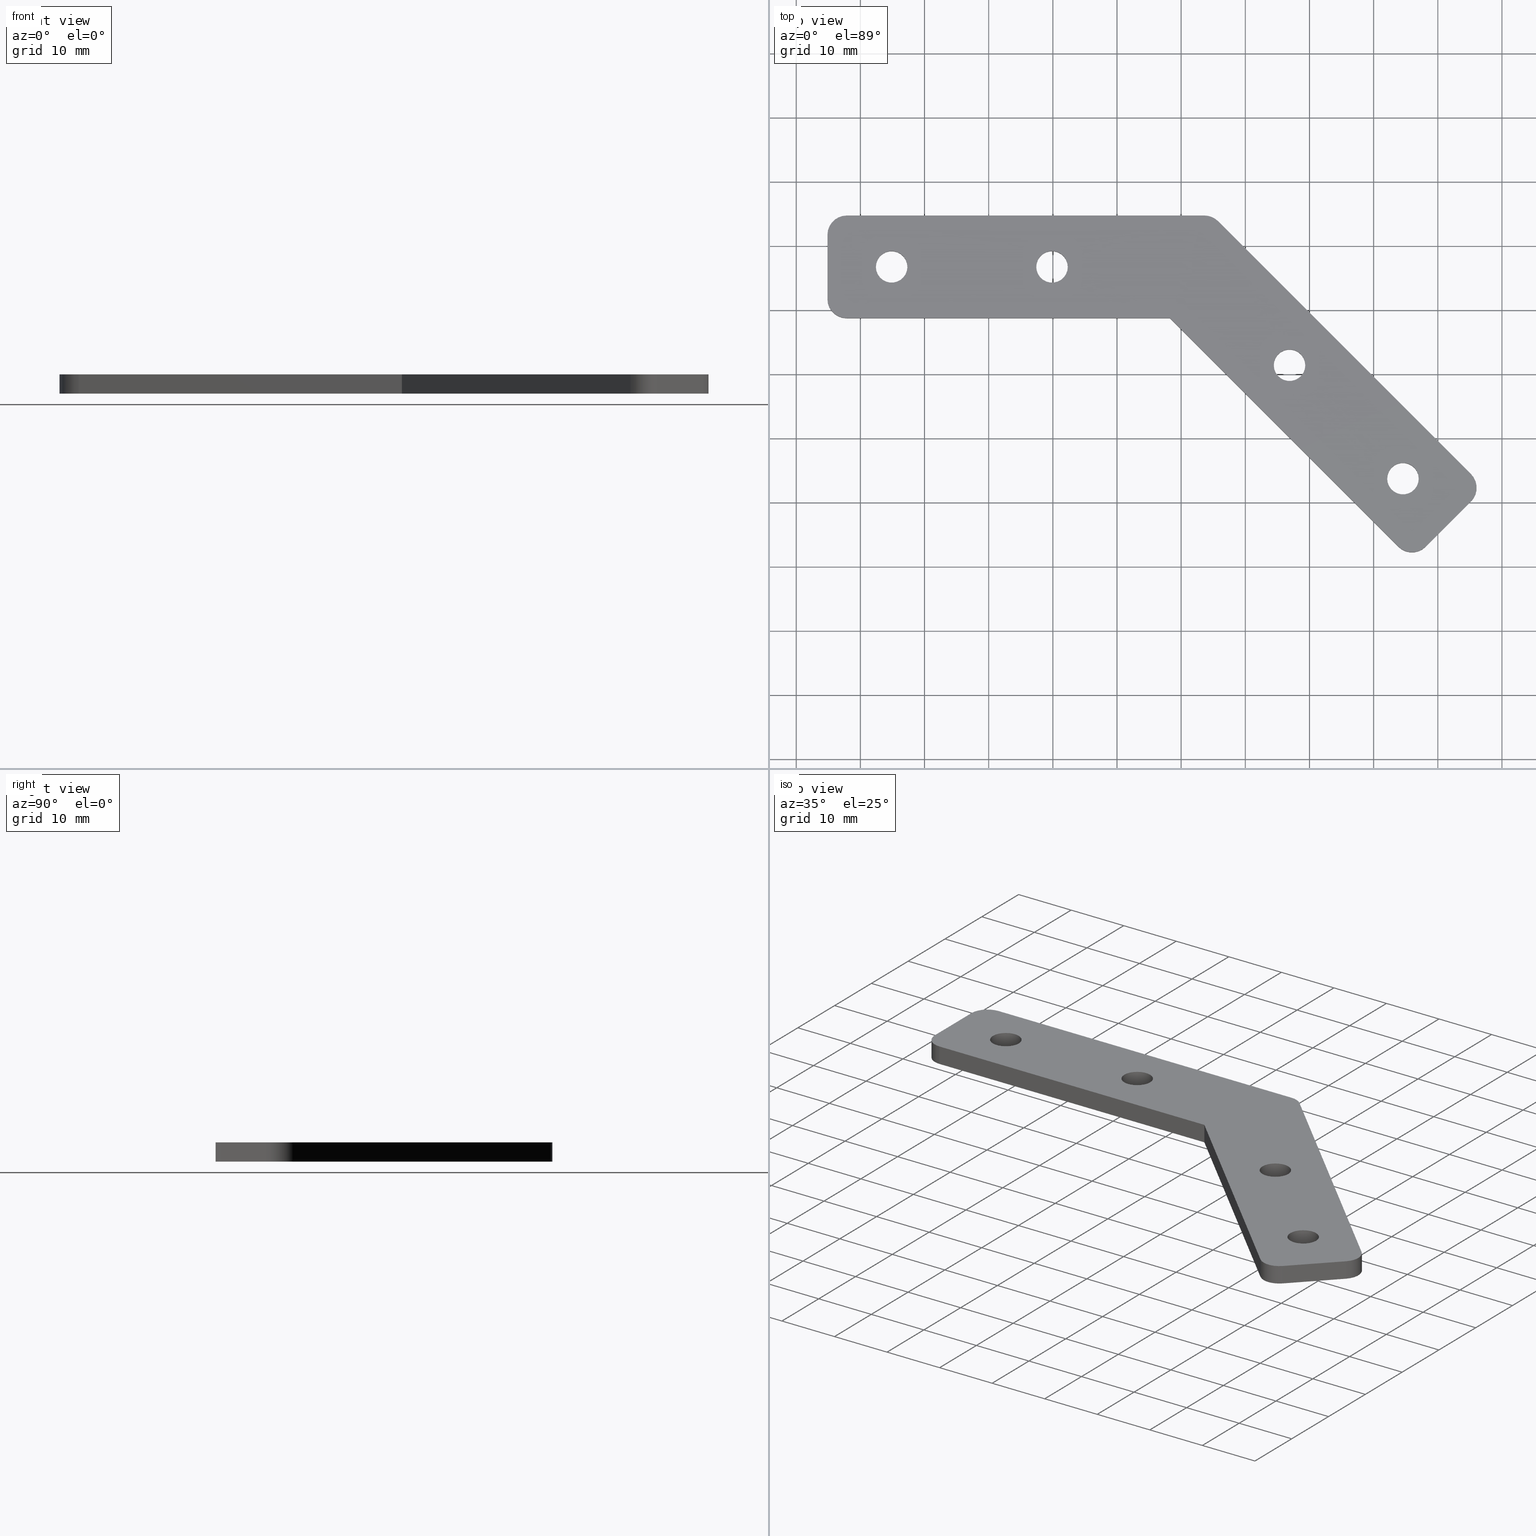
[diagram: canonical four-view strip — front | top / right | iso, engineering-drawing reading convention]
A machine part, canonical four-view strip (front | top / right | iso — engineering-drawing reading convention). The complete STEP part file that produces these views, byte-faithful:
ISO-10303-21;
HEADER;
/* Generated by software containing ST-Developer
 * from STEP Tools, Inc. (www.steptools.com) 
 */

FILE_DESCRIPTION(
/* description */ ('GIUNZIONE. ANG. A 45\X2\FFFD\X0\ PER PROF. SERIE 3
0'),
/* implementation_level */ '2;1');

FILE_NAME(
/* name */ 
'Q:\\Catalogo\\2_Accessori Dierre\\Per Download Web e catalogo cartace
o\\CATALOGO ELEMENTI ASSEMBLAGGIO\\PAGINA 24\\CGIPR0000088.stp',
/* time_stamp */ '2018-06-19T09:16:56+02:00',
/* author */ ('fzagni'),
/* organization */ (''),
/* preprocessor_version */ 'ST-DEVELOPER v16.1',
/* originating_system */ 'Autodesk Inventor 2016',
/* authorisation */ '');

FILE_SCHEMA (('AUTOMOTIVE_DESIGN { 1 0 10303 214 3 1 1 }'));
ENDSEC;

DATA;
#10=MECHANICAL_DESIGN_GEOMETRIC_PRESENTATION_REPRESENTATION('',(#13),#548);
#11=SHAPE_REPRESENTATION_RELATIONSHIP('SRR','None',#557,#12);
#12=ADVANCED_BREP_SHAPE_REPRESENTATION('',(#14),#547);
#13=STYLED_ITEM('',(#566),#14);
#14=MANIFOLD_SOLID_BREP('Solido1',#324);
#15=PLANE('',#341);
#16=PLANE('',#345);
#17=PLANE('',#349);
#18=PLANE('',#350);
#19=PLANE('',#354);
#20=PLANE('',#358);
#21=PLANE('',#359);
#22=PLANE('',#360);
#23=LINE('',#482,#46);
#24=LINE('',#485,#47);
#25=LINE('',#488,#48);
#26=LINE('',#490,#49);
#27=LINE('',#491,#50);
#28=LINE('',#497,#51);
#29=LINE('',#500,#52);
#30=LINE('',#502,#53);
#31=LINE('',#503,#54);
#32=LINE('',#509,#55);
#33=LINE('',#512,#56);
#34=LINE('',#514,#57);
#35=LINE('',#515,#58);
#36=LINE('',#518,#59);
#37=LINE('',#520,#60);
#38=LINE('',#521,#61);
#39=LINE('',#527,#62);
#40=LINE('',#530,#63);
#41=LINE('',#532,#64);
#42=LINE('',#533,#65);
#43=LINE('',#539,#66);
#44=LINE('',#541,#67);
#45=LINE('',#542,#68);
#46=VECTOR('',#391,3.);
#47=VECTOR('',#394,3.);
#48=VECTOR('',#397,55.7573593128806);
#49=VECTOR('',#398,55.7573593128806);
#50=VECTOR('',#399,3.);
#51=VECTOR('',#406,3.);
#52=VECTOR('',#409,10.0000000000002);
#53=VECTOR('',#410,10.0000000000002);
#54=VECTOR('',#411,3.);
#55=VECTOR('',#418,3.);
#56=VECTOR('',#421,50.3725830020307);
#57=VECTOR('',#422,50.3725830020307);
#58=VECTOR('',#423,3.);
#59=VECTOR('',#426,50.3725830020304);
#60=VECTOR('',#427,50.3725830020304);
#61=VECTOR('',#428,3.);
#62=VECTOR('',#435,3.);
#63=VECTOR('',#438,10.);
#64=VECTOR('',#439,10.);
#65=VECTOR('',#440,3.);
#66=VECTOR('',#447,3.);
#67=VECTOR('',#450,55.7573593128808);
#68=VECTOR('',#451,55.7573593128808);
#69=FACE_BOUND('',#99,.T.);
#70=FACE_BOUND('',#101,.T.);
#71=FACE_BOUND('',#103,.T.);
#72=FACE_BOUND('',#105,.T.);
#73=FACE_BOUND('',#118,.T.);
#74=FACE_BOUND('',#119,.T.);
#75=FACE_BOUND('',#120,.T.);
#76=FACE_BOUND('',#121,.T.);
#77=FACE_BOUND('',#123,.T.);
#78=FACE_BOUND('',#124,.T.);
#79=FACE_BOUND('',#125,.T.);
#80=FACE_BOUND('',#126,.T.);
#81=FACE_OUTER_BOUND('',#98,.T.);
#82=FACE_OUTER_BOUND('',#100,.T.);
#83=FACE_OUTER_BOUND('',#102,.T.);
#84=FACE_OUTER_BOUND('',#104,.T.);
#85=FACE_OUTER_BOUND('',#106,.T.);
#86=FACE_OUTER_BOUND('',#107,.T.);
#87=FACE_OUTER_BOUND('',#108,.T.);
#88=FACE_OUTER_BOUND('',#109,.T.);
#89=FACE_OUTER_BOUND('',#110,.T.);
#90=FACE_OUTER_BOUND('',#111,.T.);
#91=FACE_OUTER_BOUND('',#112,.T.);
#92=FACE_OUTER_BOUND('',#113,.T.);
#93=FACE_OUTER_BOUND('',#114,.T.);
#94=FACE_OUTER_BOUND('',#115,.T.);
#95=FACE_OUTER_BOUND('',#116,.T.);
#96=FACE_OUTER_BOUND('',#117,.T.);
#97=FACE_OUTER_BOUND('',#122,.T.);
#98=EDGE_LOOP('',(#216));
#99=EDGE_LOOP('',(#217));
#100=EDGE_LOOP('',(#218));
#101=EDGE_LOOP('',(#219));
#102=EDGE_LOOP('',(#220));
#103=EDGE_LOOP('',(#221));
#104=EDGE_LOOP('',(#222));
#105=EDGE_LOOP('',(#223));
#106=EDGE_LOOP('',(#224,#225,#226,#227));
#107=EDGE_LOOP('',(#228,#229,#230,#231));
#108=EDGE_LOOP('',(#232,#233,#234,#235));
#109=EDGE_LOOP('',(#236,#237,#238,#239));
#110=EDGE_LOOP('',(#240,#241,#242,#243));
#111=EDGE_LOOP('',(#244,#245,#246,#247));
#112=EDGE_LOOP('',(#248,#249,#250,#251));
#113=EDGE_LOOP('',(#252,#253,#254,#255));
#114=EDGE_LOOP('',(#256,#257,#258,#259));
#115=EDGE_LOOP('',(#260,#261,#262,#263));
#116=EDGE_LOOP('',(#264,#265,#266,#267));
#117=EDGE_LOOP('',(#268,#269,#270,#271,#272,#273,#274,#275,#276,#277,#278));
#118=EDGE_LOOP('',(#279));
#119=EDGE_LOOP('',(#280));
#120=EDGE_LOOP('',(#281));
#121=EDGE_LOOP('',(#282));
#122=EDGE_LOOP('',(#283,#284,#285,#286,#287,#288,#289,#290,#291,#292,#293));
#123=EDGE_LOOP('',(#294));
#124=EDGE_LOOP('',(#295));
#125=EDGE_LOOP('',(#296));
#126=EDGE_LOOP('',(#297));
#127=CIRCLE('',#327,2.4585);
#128=CIRCLE('',#328,2.4585);
#129=CIRCLE('',#330,2.4585);
#130=CIRCLE('',#331,2.4585);
#131=CIRCLE('',#333,2.4585);
#132=CIRCLE('',#334,2.4585);
#133=CIRCLE('',#336,2.4585);
#134=CIRCLE('',#337,2.4585);
#135=CIRCLE('',#339,3.);
#136=CIRCLE('',#340,3.);
#137=CIRCLE('',#343,3.);
#138=CIRCLE('',#344,3.);
#139=CIRCLE('',#347,3.);
#140=CIRCLE('',#348,3.);
#141=CIRCLE('',#352,3.);
#142=CIRCLE('',#353,3.);
#143=CIRCLE('',#356,3.);
#144=CIRCLE('',#357,3.);
#145=VERTEX_POINT('',#458);
#146=VERTEX_POINT('',#460);
#147=VERTEX_POINT('',#463);
#148=VERTEX_POINT('',#465);
#149=VERTEX_POINT('',#468);
#150=VERTEX_POINT('',#470);
#151=VERTEX_POINT('',#473);
#152=VERTEX_POINT('',#475);
#153=VERTEX_POINT('',#478);
#154=VERTEX_POINT('',#479);
#155=VERTEX_POINT('',#481);
#156=VERTEX_POINT('',#483);
#157=VERTEX_POINT('',#487);
#158=VERTEX_POINT('',#489);
#159=VERTEX_POINT('',#493);
#160=VERTEX_POINT('',#495);
#161=VERTEX_POINT('',#499);
#162=VERTEX_POINT('',#501);
#163=VERTEX_POINT('',#505);
#164=VERTEX_POINT('',#507);
#165=VERTEX_POINT('',#511);
#166=VERTEX_POINT('',#513);
#167=VERTEX_POINT('',#517);
#168=VERTEX_POINT('',#519);
#169=VERTEX_POINT('',#523);
#170=VERTEX_POINT('',#525);
#171=VERTEX_POINT('',#529);
#172=VERTEX_POINT('',#531);
#173=VERTEX_POINT('',#535);
#174=VERTEX_POINT('',#537);
#175=EDGE_CURVE('',#145,#145,#127,.T.);
#176=EDGE_CURVE('',#146,#146,#128,.T.);
#177=EDGE_CURVE('',#147,#147,#129,.T.);
#178=EDGE_CURVE('',#148,#148,#130,.T.);
#179=EDGE_CURVE('',#149,#149,#131,.T.);
#180=EDGE_CURVE('',#150,#150,#132,.T.);
#181=EDGE_CURVE('',#151,#151,#133,.T.);
#182=EDGE_CURVE('',#152,#152,#134,.T.);
#183=EDGE_CURVE('',#153,#154,#135,.T.);
#184=EDGE_CURVE('',#153,#155,#23,.T.);
#185=EDGE_CURVE('',#156,#155,#136,.T.);
#186=EDGE_CURVE('',#154,#156,#24,.T.);
#187=EDGE_CURVE('',#154,#157,#25,.T.);
#188=EDGE_CURVE('',#158,#156,#26,.T.);
#189=EDGE_CURVE('',#157,#158,#27,.T.);
#190=EDGE_CURVE('',#157,#159,#137,.T.);
#191=EDGE_CURVE('',#160,#158,#138,.T.);
#192=EDGE_CURVE('',#159,#160,#28,.T.);
#193=EDGE_CURVE('',#159,#161,#29,.T.);
#194=EDGE_CURVE('',#162,#160,#30,.T.);
#195=EDGE_CURVE('',#161,#162,#31,.T.);
#196=EDGE_CURVE('',#161,#163,#139,.T.);
#197=EDGE_CURVE('',#164,#162,#140,.T.);
#198=EDGE_CURVE('',#163,#164,#32,.T.);
#199=EDGE_CURVE('',#163,#165,#33,.T.);
#200=EDGE_CURVE('',#166,#164,#34,.T.);
#201=EDGE_CURVE('',#165,#166,#35,.T.);
#202=EDGE_CURVE('',#165,#167,#36,.T.);
#203=EDGE_CURVE('',#168,#166,#37,.T.);
#204=EDGE_CURVE('',#167,#168,#38,.T.);
#205=EDGE_CURVE('',#167,#169,#141,.T.);
#206=EDGE_CURVE('',#170,#168,#142,.T.);
#207=EDGE_CURVE('',#169,#170,#39,.T.);
#208=EDGE_CURVE('',#169,#171,#40,.T.);
#209=EDGE_CURVE('',#172,#170,#41,.T.);
#210=EDGE_CURVE('',#171,#172,#42,.T.);
#211=EDGE_CURVE('',#171,#173,#143,.T.);
#212=EDGE_CURVE('',#174,#172,#144,.T.);
#213=EDGE_CURVE('',#173,#174,#43,.T.);
#214=EDGE_CURVE('',#173,#153,#44,.T.);
#215=EDGE_CURVE('',#155,#174,#45,.T.);
#216=ORIENTED_EDGE('',*,*,#175,.F.);
#217=ORIENTED_EDGE('',*,*,#176,.F.);
#218=ORIENTED_EDGE('',*,*,#177,.F.);
#219=ORIENTED_EDGE('',*,*,#178,.F.);
#220=ORIENTED_EDGE('',*,*,#179,.F.);
#221=ORIENTED_EDGE('',*,*,#180,.F.);
#222=ORIENTED_EDGE('',*,*,#181,.F.);
#223=ORIENTED_EDGE('',*,*,#182,.F.);
#224=ORIENTED_EDGE('',*,*,#183,.F.);
#225=ORIENTED_EDGE('',*,*,#184,.T.);
#226=ORIENTED_EDGE('',*,*,#185,.F.);
#227=ORIENTED_EDGE('',*,*,#186,.F.);
#228=ORIENTED_EDGE('',*,*,#187,.F.);
#229=ORIENTED_EDGE('',*,*,#186,.T.);
#230=ORIENTED_EDGE('',*,*,#188,.F.);
#231=ORIENTED_EDGE('',*,*,#189,.F.);
#232=ORIENTED_EDGE('',*,*,#190,.F.);
#233=ORIENTED_EDGE('',*,*,#189,.T.);
#234=ORIENTED_EDGE('',*,*,#191,.F.);
#235=ORIENTED_EDGE('',*,*,#192,.F.);
#236=ORIENTED_EDGE('',*,*,#193,.F.);
#237=ORIENTED_EDGE('',*,*,#192,.T.);
#238=ORIENTED_EDGE('',*,*,#194,.F.);
#239=ORIENTED_EDGE('',*,*,#195,.F.);
#240=ORIENTED_EDGE('',*,*,#196,.F.);
#241=ORIENTED_EDGE('',*,*,#195,.T.);
#242=ORIENTED_EDGE('',*,*,#197,.F.);
#243=ORIENTED_EDGE('',*,*,#198,.F.);
#244=ORIENTED_EDGE('',*,*,#199,.F.);
#245=ORIENTED_EDGE('',*,*,#198,.T.);
#246=ORIENTED_EDGE('',*,*,#200,.F.);
#247=ORIENTED_EDGE('',*,*,#201,.F.);
#248=ORIENTED_EDGE('',*,*,#202,.F.);
#249=ORIENTED_EDGE('',*,*,#201,.T.);
#250=ORIENTED_EDGE('',*,*,#203,.F.);
#251=ORIENTED_EDGE('',*,*,#204,.F.);
#252=ORIENTED_EDGE('',*,*,#205,.F.);
#253=ORIENTED_EDGE('',*,*,#204,.T.);
#254=ORIENTED_EDGE('',*,*,#206,.F.);
#255=ORIENTED_EDGE('',*,*,#207,.F.);
#256=ORIENTED_EDGE('',*,*,#208,.F.);
#257=ORIENTED_EDGE('',*,*,#207,.T.);
#258=ORIENTED_EDGE('',*,*,#209,.F.);
#259=ORIENTED_EDGE('',*,*,#210,.F.);
#260=ORIENTED_EDGE('',*,*,#211,.F.);
#261=ORIENTED_EDGE('',*,*,#210,.T.);
#262=ORIENTED_EDGE('',*,*,#212,.F.);
#263=ORIENTED_EDGE('',*,*,#213,.F.);
#264=ORIENTED_EDGE('',*,*,#214,.F.);
#265=ORIENTED_EDGE('',*,*,#213,.T.);
#266=ORIENTED_EDGE('',*,*,#215,.F.);
#267=ORIENTED_EDGE('',*,*,#184,.F.);
#268=ORIENTED_EDGE('',*,*,#214,.T.);
#269=ORIENTED_EDGE('',*,*,#183,.T.);
#270=ORIENTED_EDGE('',*,*,#187,.T.);
#271=ORIENTED_EDGE('',*,*,#190,.T.);
#272=ORIENTED_EDGE('',*,*,#193,.T.);
#273=ORIENTED_EDGE('',*,*,#196,.T.);
#274=ORIENTED_EDGE('',*,*,#199,.T.);
#275=ORIENTED_EDGE('',*,*,#202,.T.);
#276=ORIENTED_EDGE('',*,*,#205,.T.);
#277=ORIENTED_EDGE('',*,*,#208,.T.);
#278=ORIENTED_EDGE('',*,*,#211,.T.);
#279=ORIENTED_EDGE('',*,*,#175,.T.);
#280=ORIENTED_EDGE('',*,*,#177,.T.);
#281=ORIENTED_EDGE('',*,*,#179,.T.);
#282=ORIENTED_EDGE('',*,*,#181,.T.);
#283=ORIENTED_EDGE('',*,*,#215,.T.);
#284=ORIENTED_EDGE('',*,*,#212,.T.);
#285=ORIENTED_EDGE('',*,*,#209,.T.);
#286=ORIENTED_EDGE('',*,*,#206,.T.);
#287=ORIENTED_EDGE('',*,*,#203,.T.);
#288=ORIENTED_EDGE('',*,*,#200,.T.);
#289=ORIENTED_EDGE('',*,*,#197,.T.);
#290=ORIENTED_EDGE('',*,*,#194,.T.);
#291=ORIENTED_EDGE('',*,*,#191,.T.);
#292=ORIENTED_EDGE('',*,*,#188,.T.);
#293=ORIENTED_EDGE('',*,*,#185,.T.);
#294=ORIENTED_EDGE('',*,*,#176,.T.);
#295=ORIENTED_EDGE('',*,*,#178,.T.);
#296=ORIENTED_EDGE('',*,*,#180,.T.);
#297=ORIENTED_EDGE('',*,*,#182,.T.);
#298=CYLINDRICAL_SURFACE('',#326,2.4585);
#299=CYLINDRICAL_SURFACE('',#329,2.4585);
#300=CYLINDRICAL_SURFACE('',#332,2.4585);
#301=CYLINDRICAL_SURFACE('',#335,2.4585);
#302=CYLINDRICAL_SURFACE('',#338,3.);
#303=CYLINDRICAL_SURFACE('',#342,3.);
#304=CYLINDRICAL_SURFACE('',#346,3.);
#305=CYLINDRICAL_SURFACE('',#351,3.);
#306=CYLINDRICAL_SURFACE('',#355,3.);
#307=ADVANCED_FACE('',(#81,#69),#298,.F.);
#308=ADVANCED_FACE('',(#82,#70),#299,.F.);
#309=ADVANCED_FACE('',(#83,#71),#300,.F.);
#310=ADVANCED_FACE('',(#84,#72),#301,.F.);
#311=ADVANCED_FACE('',(#85),#302,.T.);
#312=ADVANCED_FACE('',(#86),#15,.T.);
#313=ADVANCED_FACE('',(#87),#303,.T.);
#314=ADVANCED_FACE('',(#88),#16,.T.);
#315=ADVANCED_FACE('',(#89),#304,.T.);
#316=ADVANCED_FACE('',(#90),#17,.T.);
#317=ADVANCED_FACE('',(#91),#18,.T.);
#318=ADVANCED_FACE('',(#92),#305,.T.);
#319=ADVANCED_FACE('',(#93),#19,.T.);
#320=ADVANCED_FACE('',(#94),#306,.T.);
#321=ADVANCED_FACE('',(#95),#20,.T.);
#322=ADVANCED_FACE('',(#96,#73,#74,#75,#76),#21,.F.);
#323=ADVANCED_FACE('',(#97,#77,#78,#79,#80),#22,.T.);
#324=CLOSED_SHELL('',(#307,#308,#309,#310,#311,#312,#313,#314,#315,#316,
#317,#318,#319,#320,#321,#322,#323));
#325=AXIS2_PLACEMENT_3D('placement',#456,#361,#362);
#326=AXIS2_PLACEMENT_3D('',#457,#363,#364);
#327=AXIS2_PLACEMENT_3D('',#459,#365,#366);
#328=AXIS2_PLACEMENT_3D('',#461,#367,#368);
#329=AXIS2_PLACEMENT_3D('',#462,#369,#370);
#330=AXIS2_PLACEMENT_3D('',#464,#371,#372);
#331=AXIS2_PLACEMENT_3D('',#466,#373,#374);
#332=AXIS2_PLACEMENT_3D('',#467,#375,#376);
#333=AXIS2_PLACEMENT_3D('',#469,#377,#378);
#334=AXIS2_PLACEMENT_3D('',#471,#379,#380);
#335=AXIS2_PLACEMENT_3D('',#472,#381,#382);
#336=AXIS2_PLACEMENT_3D('',#474,#383,#384);
#337=AXIS2_PLACEMENT_3D('',#476,#385,#386);
#338=AXIS2_PLACEMENT_3D('',#477,#387,#388);
#339=AXIS2_PLACEMENT_3D('',#480,#389,#390);
#340=AXIS2_PLACEMENT_3D('',#484,#392,#393);
#341=AXIS2_PLACEMENT_3D('',#486,#395,#396);
#342=AXIS2_PLACEMENT_3D('',#492,#400,#401);
#343=AXIS2_PLACEMENT_3D('',#494,#402,#403);
#344=AXIS2_PLACEMENT_3D('',#496,#404,#405);
#345=AXIS2_PLACEMENT_3D('',#498,#407,#408);
#346=AXIS2_PLACEMENT_3D('',#504,#412,#413);
#347=AXIS2_PLACEMENT_3D('',#506,#414,#415);
#348=AXIS2_PLACEMENT_3D('',#508,#416,#417);
#349=AXIS2_PLACEMENT_3D('',#510,#419,#420);
#350=AXIS2_PLACEMENT_3D('',#516,#424,#425);
#351=AXIS2_PLACEMENT_3D('',#522,#429,#430);
#352=AXIS2_PLACEMENT_3D('',#524,#431,#432);
#353=AXIS2_PLACEMENT_3D('',#526,#433,#434);
#354=AXIS2_PLACEMENT_3D('',#528,#436,#437);
#355=AXIS2_PLACEMENT_3D('',#534,#441,#442);
#356=AXIS2_PLACEMENT_3D('',#536,#443,#444);
#357=AXIS2_PLACEMENT_3D('',#538,#445,#446);
#358=AXIS2_PLACEMENT_3D('',#540,#448,#449);
#359=AXIS2_PLACEMENT_3D('',#543,#452,#453);
#360=AXIS2_PLACEMENT_3D('',#544,#454,#455);
#361=DIRECTION('axis',(0.,0.,1.));
#362=DIRECTION('refdir',(1.,0.,0.));
#363=DIRECTION('center_axis',(0.,0.,1.));
#364=DIRECTION('ref_axis',(1.,0.,0.));
#365=DIRECTION('center_axis',(0.,0.,1.));
#366=DIRECTION('ref_axis',(1.,0.,0.));
#367=DIRECTION('center_axis',(0.,0.,-1.));
#368=DIRECTION('ref_axis',(1.,0.,0.));
#369=DIRECTION('center_axis',(0.,0.,1.));
#370=DIRECTION('ref_axis',(1.,0.,0.));
#371=DIRECTION('center_axis',(0.,0.,1.));
#372=DIRECTION('ref_axis',(1.,0.,0.));
#373=DIRECTION('center_axis',(0.,0.,-1.));
#374=DIRECTION('ref_axis',(1.,0.,0.));
#375=DIRECTION('center_axis',(0.,0.,1.));
#376=DIRECTION('ref_axis',(1.,0.,0.));
#377=DIRECTION('center_axis',(0.,0.,1.));
#378=DIRECTION('ref_axis',(1.,0.,0.));
#379=DIRECTION('center_axis',(0.,0.,-1.));
#380=DIRECTION('ref_axis',(1.,0.,0.));
#381=DIRECTION('center_axis',(0.,0.,1.));
#382=DIRECTION('ref_axis',(1.,0.,0.));
#383=DIRECTION('center_axis',(0.,0.,1.));
#384=DIRECTION('ref_axis',(1.,0.,0.));
#385=DIRECTION('center_axis',(0.,0.,-1.));
#386=DIRECTION('ref_axis',(1.,0.,0.));
#387=DIRECTION('center_axis',(0.,0.,1.));
#388=DIRECTION('ref_axis',(-0.707106781186558,-0.707106781186537,0.));
#389=DIRECTION('center_axis',(0.,0.,-1.));
#390=DIRECTION('ref_axis',(-0.707106781186558,-0.707106781186537,0.));
#391=DIRECTION('',(0.,0.,1.));
#392=DIRECTION('center_axis',(0.,0.,1.));
#393=DIRECTION('ref_axis',(-0.707106781186558,-0.707106781186537,0.));
#394=DIRECTION('',(0.,0.,1.));
#395=DIRECTION('center_axis',(0.707106781186546,0.707106781186549,0.));
#396=DIRECTION('ref_axis',(-0.707106781186549,0.707106781186546,0.));
#397=DIRECTION('',(0.707106781186549,-0.707106781186546,0.));
#398=DIRECTION('',(-0.707106781186549,0.707106781186546,0.));
#399=DIRECTION('',(0.,0.,1.));
#400=DIRECTION('center_axis',(0.,0.,1.));
#401=DIRECTION('ref_axis',(-0.707106781186537,0.707106781186558,0.));
#402=DIRECTION('center_axis',(0.,0.,-1.));
#403=DIRECTION('ref_axis',(-0.707106781186537,0.707106781186558,0.));
#404=DIRECTION('center_axis',(0.,0.,1.));
#405=DIRECTION('ref_axis',(-0.707106781186537,0.707106781186558,0.));
#406=DIRECTION('',(0.,0.,1.));
#407=DIRECTION('center_axis',(0.707106781186539,-0.707106781186556,0.));
#408=DIRECTION('ref_axis',(0.707106781186556,0.707106781186539,0.));
#409=DIRECTION('',(-0.707106781186556,-0.707106781186539,0.));
#410=DIRECTION('',(0.707106781186556,0.707106781186539,0.));
#411=DIRECTION('',(0.,0.,1.));
#412=DIRECTION('center_axis',(0.,0.,1.));
#413=DIRECTION('ref_axis',(0.707106781186557,0.707106781186538,0.));
#414=DIRECTION('center_axis',(0.,0.,-1.));
#415=DIRECTION('ref_axis',(0.707106781186557,0.707106781186538,0.));
#416=DIRECTION('center_axis',(0.,0.,1.));
#417=DIRECTION('ref_axis',(0.707106781186557,0.707106781186538,0.));
#418=DIRECTION('',(0.,0.,1.));
#419=DIRECTION('center_axis',(-0.707106781186546,-0.707106781186549,0.));
#420=DIRECTION('ref_axis',(0.707106781186549,-0.707106781186546,0.));
#421=DIRECTION('',(-0.707106781186549,0.707106781186546,0.));
#422=DIRECTION('',(0.707106781186549,-0.707106781186546,0.));
#423=DIRECTION('',(0.,0.,1.));
#424=DIRECTION('center_axis',(0.,-1.,0.));
#425=DIRECTION('ref_axis',(1.,0.,0.));
#426=DIRECTION('',(-1.,0.,0.));
#427=DIRECTION('',(1.,0.,0.));
#428=DIRECTION('',(0.,0.,1.));
#429=DIRECTION('center_axis',(0.,0.,1.));
#430=DIRECTION('ref_axis',(1.,0.,0.));
#431=DIRECTION('center_axis',(0.,0.,-1.));
#432=DIRECTION('ref_axis',(1.,0.,0.));
#433=DIRECTION('center_axis',(0.,0.,1.));
#434=DIRECTION('ref_axis',(1.,0.,0.));
#435=DIRECTION('',(0.,0.,1.));
#436=DIRECTION('center_axis',(-1.,0.,0.));
#437=DIRECTION('ref_axis',(0.,-1.,0.));
#438=DIRECTION('',(0.,1.,0.));
#439=DIRECTION('',(0.,-1.,0.));
#440=DIRECTION('',(0.,0.,1.));
#441=DIRECTION('center_axis',(0.,0.,1.));
#442=DIRECTION('ref_axis',(0.,-1.,0.));
#443=DIRECTION('center_axis',(0.,0.,-1.));
#444=DIRECTION('ref_axis',(0.,-1.,0.));
#445=DIRECTION('center_axis',(0.,0.,1.));
#446=DIRECTION('ref_axis',(0.,-1.,0.));
#447=DIRECTION('',(0.,0.,1.));
#448=DIRECTION('center_axis',(0.,1.,0.));
#449=DIRECTION('ref_axis',(-1.,0.,0.));
#450=DIRECTION('',(1.,0.,0.));
#451=DIRECTION('',(-1.,0.,0.));
#452=DIRECTION('center_axis',(0.,0.,1.));
#453=DIRECTION('ref_axis',(1.,0.,0.));
#454=DIRECTION('center_axis',(0.,0.,1.));
#455=DIRECTION('ref_axis',(1.,0.,0.));
#456=CARTESIAN_POINT('',(0.,0.,0.));
#457=CARTESIAN_POINT('Origin',(84.5704694085148,13.7262346544409,-1.));
#458=CARTESIAN_POINT('',(82.1119694085148,13.7262346544409,0.));
#459=CARTESIAN_POINT('Origin',(84.5704694085148,13.7262346544409,0.));
#460=CARTESIAN_POINT('',(87.0289694085149,13.7262346544409,3.));
#461=CARTESIAN_POINT('Origin',(84.5704694085148,13.7262346544409,3.));
#462=CARTESIAN_POINT('Origin',(4.87198459867972,46.7384279632606,-1.));
#463=CARTESIAN_POINT('',(2.41348459867972,46.7384279632606,0.));
#464=CARTESIAN_POINT('Origin',(4.87198459867972,46.7384279632606,0.));
#465=CARTESIAN_POINT('',(7.33048459867971,46.7384279632606,3.));
#466=CARTESIAN_POINT('Origin',(4.87198459867972,46.7384279632606,3.));
#467=CARTESIAN_POINT('Origin',(29.8719845986797,46.7384279632606,-1.));
#468=CARTESIAN_POINT('',(27.4134845986797,46.7384279632606,0.));
#469=CARTESIAN_POINT('Origin',(29.8719845986797,46.7384279632606,0.));
#470=CARTESIAN_POINT('',(32.3304845986797,46.7384279632606,3.));
#471=CARTESIAN_POINT('Origin',(29.8719845986797,46.7384279632606,3.));
#472=CARTESIAN_POINT('Origin',(66.8927998788514,31.4039041841048,-1.));
#473=CARTESIAN_POINT('',(64.4342998788514,31.4039041841048,0.));
#474=CARTESIAN_POINT('Origin',(66.8927998788514,31.4039041841048,0.));
#475=CARTESIAN_POINT('',(69.3512998788514,31.4039041841048,3.));
#476=CARTESIAN_POINT('Origin',(66.8927998788514,31.4039041841048,3.));
#477=CARTESIAN_POINT('Origin',(53.6293439115605,51.7384279632606,0.));
#478=CARTESIAN_POINT('',(53.6293439115605,54.7384279632606,0.));
#479=CARTESIAN_POINT('',(55.7506642551201,53.8597483068202,0.));
#480=CARTESIAN_POINT('Origin',(53.6293439115605,51.7384279632606,0.));
#481=CARTESIAN_POINT('',(53.6293439115605,54.7384279632606,3.));
#482=CARTESIAN_POINT('',(53.6293439115605,54.7384279632606,0.));
#483=CARTESIAN_POINT('',(55.7506642551201,53.8597483068202,3.));
#484=CARTESIAN_POINT('Origin',(53.6293439115605,51.7384279632606,3.));
#485=CARTESIAN_POINT('',(55.7506642551201,53.8597483068202,0.));
#486=CARTESIAN_POINT('Origin',(95.177071126313,14.4333414356274,0.));
#487=CARTESIAN_POINT('',(95.177071126313,14.4333414356274,0.));
#488=CARTESIAN_POINT('',(55.7506642551201,53.8597483068202,0.));
#489=CARTESIAN_POINT('',(95.177071126313,14.4333414356274,3.));
#490=CARTESIAN_POINT('',(55.7506642551201,53.8597483068202,3.));
#491=CARTESIAN_POINT('',(95.177071126313,14.4333414356274,0.));
#492=CARTESIAN_POINT('Origin',(93.0557507827534,12.3120210920679,0.));
#493=CARTESIAN_POINT('',(95.1770711263131,10.1907007485081,0.));
#494=CARTESIAN_POINT('Origin',(93.0557507827534,12.3120210920679,0.));
#495=CARTESIAN_POINT('',(95.1770711263131,10.1907007485081,3.));
#496=CARTESIAN_POINT('Origin',(93.0557507827534,12.3120210920679,3.));
#497=CARTESIAN_POINT('',(95.1770711263131,10.1907007485081,0.));
#498=CARTESIAN_POINT('Origin',(88.1060033144474,3.11963293664257,0.));
#499=CARTESIAN_POINT('',(88.1060033144474,3.11963293664257,0.));
#500=CARTESIAN_POINT('',(95.1770711263131,10.1907007485081,0.));
#501=CARTESIAN_POINT('',(88.1060033144474,3.11963293664258,3.));
#502=CARTESIAN_POINT('',(95.1770711263131,10.1907007485081,3.));
#503=CARTESIAN_POINT('',(88.1060033144474,3.11963293664257,0.));
#504=CARTESIAN_POINT('Origin',(85.9846829708879,5.24095328020212,0.));
#505=CARTESIAN_POINT('',(83.8633626273283,3.11963293664257,0.));
#506=CARTESIAN_POINT('Origin',(85.9846829708879,5.24095328020212,0.));
#507=CARTESIAN_POINT('',(83.8633626273283,3.11963293664258,3.));
#508=CARTESIAN_POINT('Origin',(85.9846829708879,5.24095328020212,3.));
#509=CARTESIAN_POINT('',(83.8633626273283,3.11963293664257,0.));
#510=CARTESIAN_POINT('Origin',(48.2445676007101,38.7384279632606,0.));
#511=CARTESIAN_POINT('',(48.2445676007101,38.7384279632606,0.));
#512=CARTESIAN_POINT('',(83.8633626273283,3.11963293664257,0.));
#513=CARTESIAN_POINT('',(48.2445676007101,38.7384279632606,3.));
#514=CARTESIAN_POINT('',(83.8633626273283,3.11963293664257,3.));
#515=CARTESIAN_POINT('',(48.2445676007101,38.7384279632606,0.));
#516=CARTESIAN_POINT('Origin',(-2.12801540132029,38.7384279632606,0.));
#517=CARTESIAN_POINT('',(-2.12801540132028,38.7384279632606,0.));
#518=CARTESIAN_POINT('',(48.2445676007101,38.7384279632606,0.));
#519=CARTESIAN_POINT('',(-2.12801540132028,38.7384279632606,3.));
#520=CARTESIAN_POINT('',(48.2445676007101,38.7384279632606,3.));
#521=CARTESIAN_POINT('',(-2.12801540132028,38.7384279632606,0.));
#522=CARTESIAN_POINT('Origin',(-2.12801540132028,41.7384279632606,0.));
#523=CARTESIAN_POINT('',(-5.12801540132028,41.7384279632606,0.));
#524=CARTESIAN_POINT('Origin',(-2.12801540132028,41.7384279632606,0.));
#525=CARTESIAN_POINT('',(-5.12801540132028,41.7384279632606,3.));
#526=CARTESIAN_POINT('Origin',(-2.12801540132028,41.7384279632606,3.));
#527=CARTESIAN_POINT('',(-5.12801540132028,41.7384279632606,0.));
#528=CARTESIAN_POINT('Origin',(-5.12801540132028,51.7384279632606,0.));
#529=CARTESIAN_POINT('',(-5.12801540132028,51.7384279632606,0.));
#530=CARTESIAN_POINT('',(-5.12801540132028,41.7384279632606,0.));
#531=CARTESIAN_POINT('',(-5.12801540132028,51.7384279632606,3.));
#532=CARTESIAN_POINT('',(-5.12801540132028,41.7384279632606,3.));
#533=CARTESIAN_POINT('',(-5.12801540132028,51.7384279632606,0.));
#534=CARTESIAN_POINT('Origin',(-2.12801540132028,51.7384279632606,0.));
#535=CARTESIAN_POINT('',(-2.12801540132028,54.7384279632606,0.));
#536=CARTESIAN_POINT('Origin',(-2.12801540132028,51.7384279632606,0.));
#537=CARTESIAN_POINT('',(-2.12801540132028,54.7384279632606,3.));
#538=CARTESIAN_POINT('Origin',(-2.12801540132028,51.7384279632606,3.));
#539=CARTESIAN_POINT('',(-2.12801540132028,54.7384279632606,0.));
#540=CARTESIAN_POINT('Origin',(53.6293439115605,54.7384279632606,0.));
#541=CARTESIAN_POINT('',(-2.12801540132028,54.7384279632606,0.));
#542=CARTESIAN_POINT('',(-2.12801540132028,54.7384279632606,3.));
#543=CARTESIAN_POINT('Origin',(47.1781870225846,36.163957572518,0.));
#544=CARTESIAN_POINT('Origin',(47.1781870225846,36.163957572518,3.));
#545=UNCERTAINTY_MEASURE_WITH_UNIT(LENGTH_MEASURE(0.01),#549,
'DISTANCE_ACCURACY_VALUE',
'Maximum model space distance between geometric entities at asserted c
onnectivities');
#546=UNCERTAINTY_MEASURE_WITH_UNIT(LENGTH_MEASURE(1.E-6),#549,
'DISTANCE_ACCURACY_VALUE',
'Maximum model space distance between geometric entities at asserted c
onnectivities');
#547=(
GEOMETRIC_REPRESENTATION_CONTEXT(3)
GLOBAL_UNCERTAINTY_ASSIGNED_CONTEXT((#545))
GLOBAL_UNIT_ASSIGNED_CONTEXT((#549,#552,#550))
REPRESENTATION_CONTEXT('','3D')
);
#548=(
GEOMETRIC_REPRESENTATION_CONTEXT(3)
GLOBAL_UNCERTAINTY_ASSIGNED_CONTEXT((#546))
GLOBAL_UNIT_ASSIGNED_CONTEXT((#549,#552,#550))
REPRESENTATION_CONTEXT('','3D')
);
#549=(
LENGTH_UNIT()
NAMED_UNIT(*)
SI_UNIT(.MILLI.,.METRE.)
);
#550=(
NAMED_UNIT(*)
SI_UNIT($,.STERADIAN.)
SOLID_ANGLE_UNIT()
);
#551=DIMENSIONAL_EXPONENTS(0.,0.,0.,0.,0.,0.,0.);
#552=(
CONVERSION_BASED_UNIT('degree',#554)
NAMED_UNIT(#551)
PLANE_ANGLE_UNIT()
);
#553=(
NAMED_UNIT(*)
PLANE_ANGLE_UNIT()
SI_UNIT($,.RADIAN.)
);
#554=PLANE_ANGLE_MEASURE_WITH_UNIT(PLANE_ANGLE_MEASURE(0.01745329252),#553);
#555=SHAPE_DEFINITION_REPRESENTATION(#556,#557);
#556=PRODUCT_DEFINITION_SHAPE('',$,#559);
#557=SHAPE_REPRESENTATION('',(#325),#547);
#558=PRODUCT_DEFINITION_CONTEXT('part definition',#563,'design');
#559=PRODUCT_DEFINITION('14.332.00','14.332.00',#560,#558);
#560=PRODUCT_DEFINITION_FORMATION('','A',#565);
#561=PRODUCT_RELATED_PRODUCT_CATEGORY('14.332.00','14.332.00',(#565));
#562=APPLICATION_PROTOCOL_DEFINITION('international standard',
'automotive_design',2009,#563);
#563=APPLICATION_CONTEXT(
'Core Data for Automotive Mechanical Design Process');
#564=PRODUCT_CONTEXT('part definition',#563,'mechanical');
#565=PRODUCT('14.332.00','14.332.00',$,(#564));
#566=PRESENTATION_STYLE_ASSIGNMENT((#567));
#567=SURFACE_STYLE_USAGE(.BOTH.,#568);
#568=SURFACE_SIDE_STYLE('',(#569));
#569=SURFACE_STYLE_FILL_AREA(#570);
#570=FILL_AREA_STYLE('',(#571));
#571=FILL_AREA_STYLE_COLOUR('',#572);
#572=COLOUR_RGB('',0.690196078431373,0.67843137254902,0.67843137254902);
ENDSEC;
END-ISO-10303-21;
